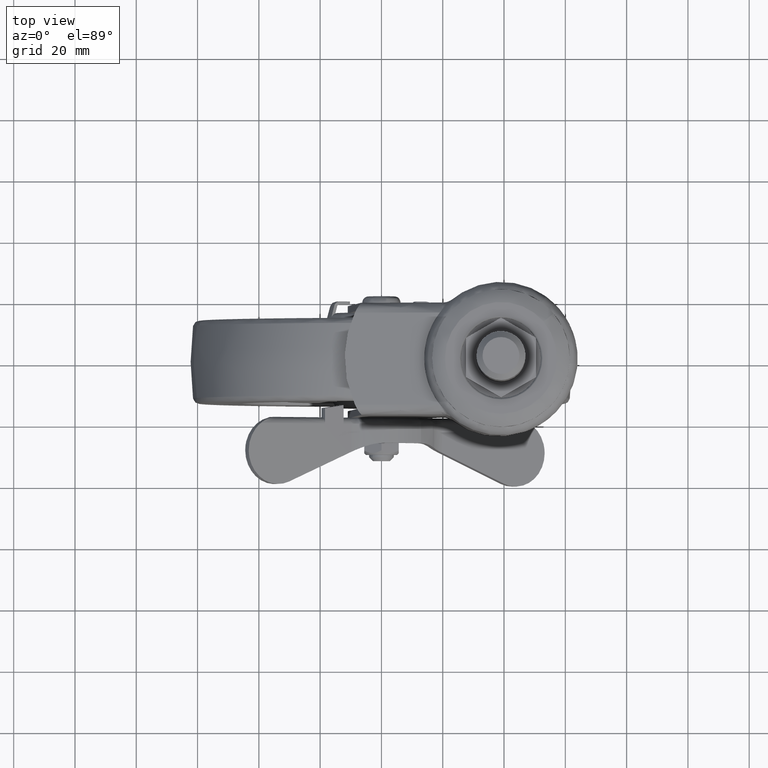
[diagram: clean part render]
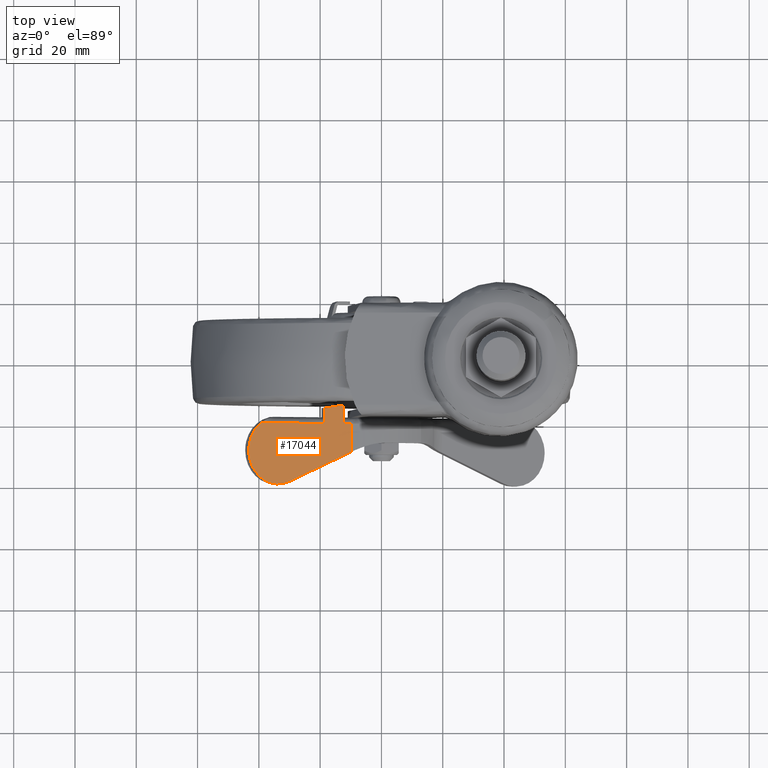
[diagram: same view with one face highlighted and labeled with its STEP entity id]
A machine part, top view. The second image highlights one B-rep face of the part: STEP entity #17044.
In plain terms, the highlighted face is a freeform B-spline surface patch.
Its self-contained STEP definition (entity closure, byte-faithful):
#15214=CARTESIAN_POINT('',(-17.093880880328150,-20.300000000000001,9.949978420978640));
#15215=VERTEX_POINT('',#15214);
#15261=CARTESIAN_POINT('',(-19.999994604697601,-20.300000000000001,9.949980063593381));
#15262=VERTEX_POINT('',#15261);
#15276=CARTESIAN_POINT('',(-17.093880880328150,-20.300000000000001,9.949978420978640));
#15277=CARTESIAN_POINT('',(-19.999994604697601,-20.300000000000001,9.949980063593381));
#15278=QUASI_UNIFORM_CURVE('',1,(#15276,#15277),.UNSPECIFIED.,.F.,.U.);
#15279=EDGE_CURVE('',#15215,#15262,#15278,.T.);
#15382=CARTESIAN_POINT('',(-26.999945601030099,-20.300000000000001,9.949979115491159));
#15383=VERTEX_POINT('',#15382);
#15402=CARTESIAN_POINT('',(-51.097137180938397,-20.300000000000001,9.949980804941218));
#15403=VERTEX_POINT('',#15402);
#15433=CARTESIAN_POINT('',(-26.999945601030099,-20.300000000000001,9.949979115491159));
#15434=CARTESIAN_POINT('',(-51.097137180938397,-20.300000000000001,9.949980804941218));
#15435=QUASI_UNIFORM_CURVE('',1,(#15433,#15434),.UNSPECIFIED.,.F.,.U.);
#15436=EDGE_CURVE('',#15383,#15403,#15435,.T.);
#15545=CARTESIAN_POINT('',(-19.999994604697601,-14.300000000000001,9.949980063593381));
#15546=VERTEX_POINT('',#15545);
#15552=CARTESIAN_POINT('',(-19.999994604697601,-20.300000000000001,9.949980063593381));
#15553=CARTESIAN_POINT('',(-19.999994604697601,-14.300000000000001,9.949980063593381));
#15554=QUASI_UNIFORM_CURVE('',1,(#15552,#15553),.UNSPECIFIED.,.F.,.U.);
#15555=EDGE_CURVE('',#15262,#15546,#15554,.T.);
#15586=CARTESIAN_POINT('',(-26.999945601030049,-15.300000000000001,9.949980063593381));
#15587=VERTEX_POINT('',#15586);
#15588=CARTESIAN_POINT('',(-26.999945601030049,-15.300000000000001,9.949980063593381));
#15589=CARTESIAN_POINT('',(-26.999945601030099,-20.300000000000001,9.949979115491159));
#15590=QUASI_UNIFORM_CURVE('',1,(#15588,#15589),.UNSPECIFIED.,.F.,.U.);
#15591=EDGE_CURVE('',#15587,#15383,#15590,.T.);
#15612=CARTESIAN_POINT('',(-19.999994604697601,-14.300000000000001,9.949980063593381));
#15613=CARTESIAN_POINT('',(-26.999945601030049,-15.300000000000001,9.949980063593381));
#15614=QUASI_UNIFORM_CURVE('',1,(#15612,#15613),.UNSPECIFIED.,.F.,.U.);
#15615=EDGE_CURVE('',#15546,#15587,#15614,.T.);
#15811=CARTESIAN_POINT('',(-55.749953124718601,-29.241503921583249,9.949981131149311));
#15812=VERTEX_POINT('',#15811);
#15813=CARTESIAN_POINT('',(-55.749953124718601,-29.241503921583249,9.949981131149311));
#15814=CARTESIAN_POINT('',(-55.748085166755722,-28.314167807539810,9.949981131018364));
#15815=CARTESIAN_POINT('',(-55.556397394955397,-26.841975911548211,9.949981117579171));
#15816=CARTESIAN_POINT('',(-54.810671971352988,-24.668983676145540,9.949981065296527));
#15817=CARTESIAN_POINT('',(-53.535540570747969,-22.426309617637440,9.949980975897248));
#15818=CARTESIAN_POINT('',(-52.078805493265691,-20.990388819408668,9.949980873765844));
#15819=CARTESIAN_POINT('',(-51.097137180938397,-20.300000000000001,9.949980804941218));
#15820=B_SPLINE_CURVE_WITH_KNOTS('',3,(#15813,#15814,#15815,#15816,#15817,#15818,#15819),.UNSPECIFIED.,.F.,.U.,(4,1,1,1,4),(0.000000054797331,2.781942302318892,4.418408575907286,6.873018209484028,10.473190686374039),.UNSPECIFIED.);
#15821=EDGE_CURVE('',#15812,#15403,#15820,.T.);
#16012=CARTESIAN_POINT('',(-55.749953124718601,-29.292369078465651,9.949980362261359));
#16013=VERTEX_POINT('',#16012);
#16039=CARTESIAN_POINT('',(-40.523045019344949,-39.372681740579502,9.949979242286021));
#16040=VERTEX_POINT('',#16039);
#16046=CARTESIAN_POINT('',(-40.523045019344949,-39.372681740579502,9.949979242286021));
#16047=CARTESIAN_POINT('',(-41.403148088297549,-39.743980251979778,9.949979434642639));
#16048=CARTESIAN_POINT('',(-43.097179511117517,-40.209264385666209,9.949979771527090));
#16049=CARTESIAN_POINT('',(-45.413239552511712,-40.278802496740212,9.949980156309241));
#16050=CARTESIAN_POINT('',(-47.362216507413557,-39.975390082711627,9.949980431684367));
#16051=CARTESIAN_POINT('',(-48.970284057813231,-39.450017301210814,9.949980622096307));
#16052=CARTESIAN_POINT('',(-50.577590186593383,-38.634564016121807,9.949980773575678));
#16053=CARTESIAN_POINT('',(-52.218075887562520,-37.436450721542933,9.949980879239918));
#16054=CARTESIAN_POINT('',(-53.655273149911288,-35.838249512622312,9.949980898420806));
#16055=CARTESIAN_POINT('',(-54.685957879709491,-34.089275423553246,9.949980831526307));
#16056=CARTESIAN_POINT('',(-55.503843154021403,-31.988627640018080,9.949980683084274));
#16057=CARTESIAN_POINT('',(-55.747903295333472,-30.360000214388322,9.949980504763241));
#16058=CARTESIAN_POINT('',(-55.749953124718601,-29.292369078465651,9.949980362261359));
#16059=B_SPLINE_CURVE_WITH_KNOTS('',3,(#16046,#16047,#16048,#16049,#16050,#16051,#16052,#16053,#16054,#16055,#16056,#16057,#16058),.UNSPECIFIED.,.F.,.U.,(4,1,1,1,1,1,1,1,1,1,4),(0.000000106456394,2.865636993083022,5.225614338429089,6.911323996512579,8.765561450597138,10.282725620670149,12.305435758228530,14.833982669641680,16.688268450337659,18.373979731401310,21.576736225971011),.UNSPECIFIED.);
#16060=EDGE_CURVE('',#16040,#16013,#16059,.T.);
#16070=CARTESIAN_POINT('',(-17.093880880328150,-29.496293358925250,9.949978420978439));
#16071=VERTEX_POINT('',#16070);
#16072=CARTESIAN_POINT('',(-17.093880880328150,-29.496293358925250,9.949978420978439));
#16073=CARTESIAN_POINT('',(-40.523045019344949,-39.372681740579502,9.949979242286021));
#16074=QUASI_UNIFORM_CURVE('',1,(#16072,#16073),.UNSPECIFIED.,.F.,.U.);
#16075=EDGE_CURVE('',#16071,#16040,#16074,.T.);
#17014=CARTESIAN_POINT('',(-17.093880880328150,-20.300000000000001,9.949978420978640));
#17015=CARTESIAN_POINT('',(-17.093880880328150,-29.496293358925250,9.949978420978439));
#17016=QUASI_UNIFORM_CURVE('',1,(#17014,#17015),.UNSPECIFIED.,.F.,.U.);
#17017=EDGE_CURVE('',#15215,#16071,#17016,.T.);
#17023=CARTESIAN_POINT('',(-15.163010872394921,-41.529044032339222,9.949978285605670));
#17024=CARTESIAN_POINT('',(-57.680824860712917,-41.529044032339222,9.949981266522427));
#17025=CARTESIAN_POINT('',(-15.163010872394921,-13.004613143966740,9.949978285605670));
#17026=CARTESIAN_POINT('',(-57.680824860712917,-13.004613143966740,9.949981266522427));
#17027=B_SPLINE_SURFACE_WITH_KNOTS('',1,1,((#17023,#17025),(#17024,#17026)),.UNSPECIFIED.,.F.,.F.,.U.,(2,2),(2,2),(0.0,42.517813988318117),(0.0,28.524430888372478),.UNSPECIFIED.);
#17028=ORIENTED_EDGE('',*,*,#17017,.F.);
#17029=ORIENTED_EDGE('',*,*,#15279,.T.);
#17030=ORIENTED_EDGE('',*,*,#15555,.T.);
#17031=ORIENTED_EDGE('',*,*,#15615,.T.);
#17032=ORIENTED_EDGE('',*,*,#15591,.T.);
#17033=ORIENTED_EDGE('',*,*,#15436,.T.);
#17034=ORIENTED_EDGE('',*,*,#15821,.F.);
#17035=CARTESIAN_POINT('',(-55.749953124718601,-29.241503921583249,9.949981131149311));
#17036=CARTESIAN_POINT('',(-55.749953124718601,-29.292369078465651,9.949980362261359));
#17037=QUASI_UNIFORM_CURVE('',1,(#17035,#17036),.UNSPECIFIED.,.F.,.U.);
#17038=EDGE_CURVE('',#15812,#16013,#17037,.T.);
#17039=ORIENTED_EDGE('',*,*,#17038,.T.);
#17040=ORIENTED_EDGE('',*,*,#16060,.F.);
#17041=ORIENTED_EDGE('',*,*,#16075,.F.);
#17042=EDGE_LOOP('',(#17028,#17029,#17030,#17031,#17032,#17033,#17034,#17039,#17040,#17041));
#17043=FACE_OUTER_BOUND('',#17042,.T.);
#17044=ADVANCED_FACE('',(#17043),#17027,.F.);